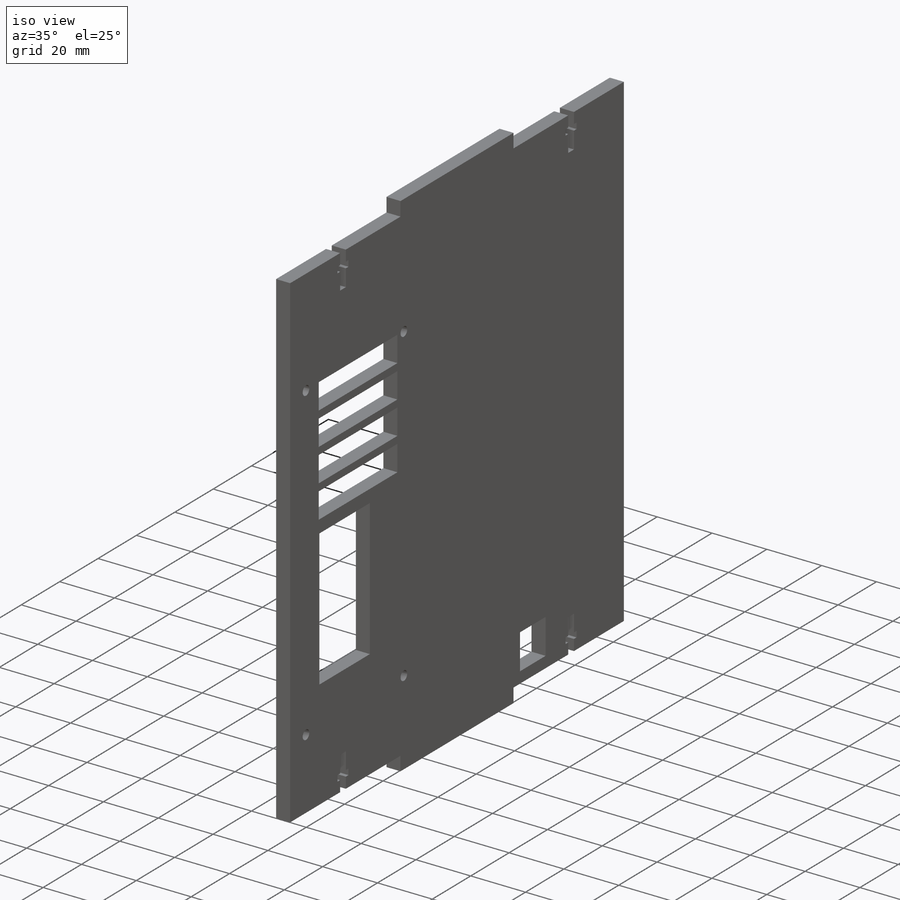
[diagram: iso view]
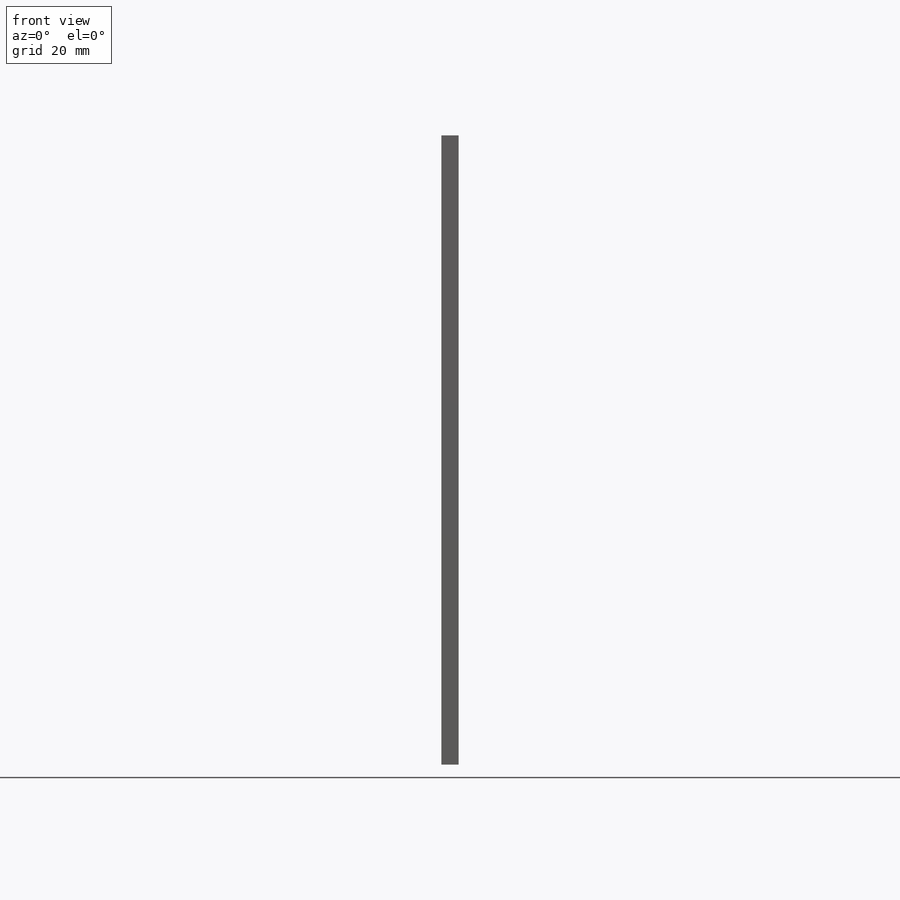
[diagram: front view]
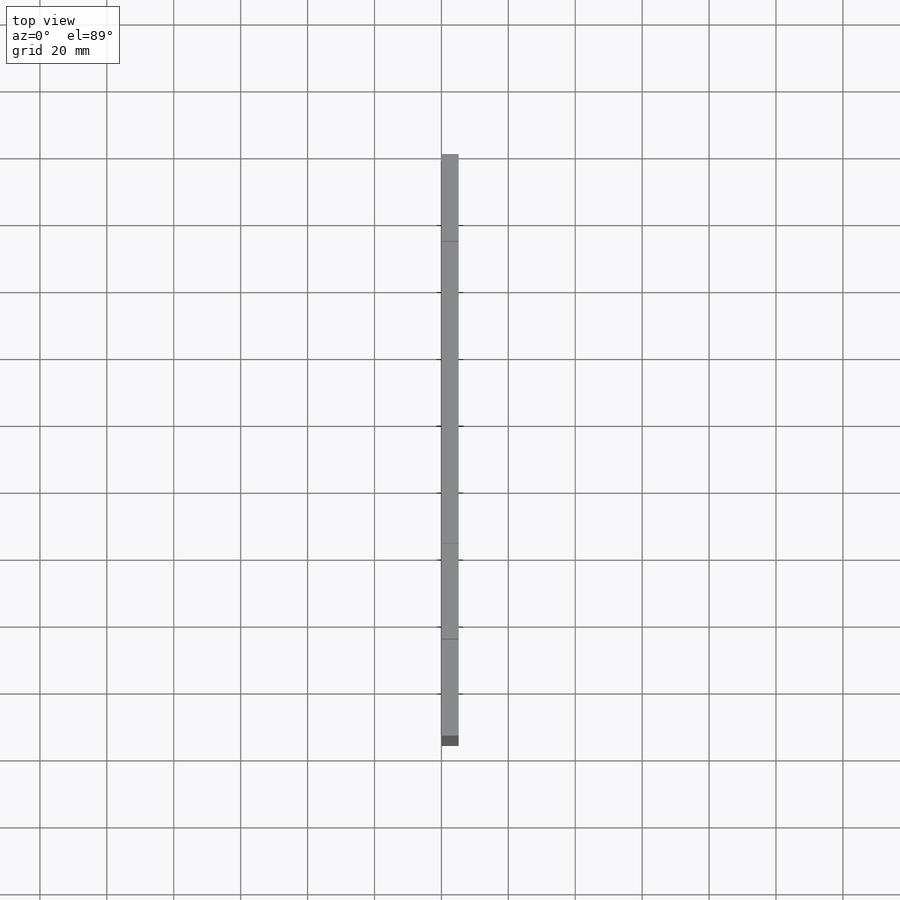
[diagram: top view]
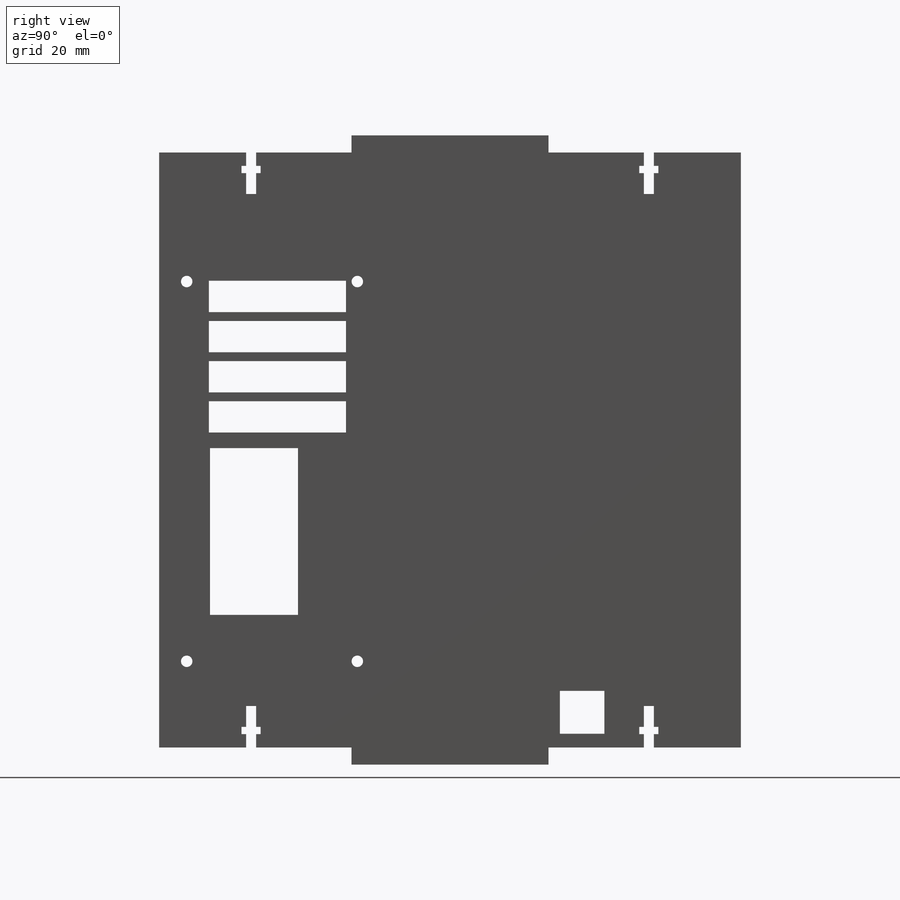
[diagram: right view]
SOLIDWORKS PART (.sldprt)
format: sldprt  version: not decoded by parser v0  size: 338,944 bytes
history: native  units: mm
features: sketch x8, cut_extrude x5, extrude x4, pattern_linear x3, plane x2, material x1, mirror x1 (+11 scaffold rows collapsed)
feature tree (35):
  scaffold x11  (default folders/planes/origin — collapsed)
  material  "Material <not specified>"
  sketch  "Sketch1"  dims[D1=173.89mm D2=177.8mm]
  extrude  "Boss-Extrude1"  Depth=5.13mm
  sketch  "Sketch6"  dims[c1.D1=58.88mm c2.D1=90.0deg c3.D1=86.945mm c3.D2=58.88mm]
  extrude  "teeth"  Depth=5.13mm
  extrude  "Axis2"  [1 undecoded]
  sketch  "Sketch2"  dims[D1=2.167mm D2=2.997mm D3=2.997mm D4=3.995mm D5=3.995mm D6=1.359mm D7=1.359mm D8=6.207mm D9=6.207mm D10=1.359mm D12=26.005mm D11=27.9985mm]
  cut_extrude  "t-slot"  Depth=5.13mm
  pattern_linear  "t-slot pattern"  Count1=2 Count2=1 Spacing1=118.88mm Spacing2=50mm
  plane  "Plane1"
  mirror  "t-slot bottom"
  sketch  "Sketch3"
  cut_extrude  "power port"  Depth=5.13mm
  sketch  "Sketch7"  dims[D1=3.429mm D4=6.25mm D3=2.0]
  cut_extrude  "Power supply screws"  [1 undecoded]
  sketch  "Sketch4"  dims[D1=~9.354563mm D2=41.0mm]
  cut_extrude  "fan vent"  Depth=5.13mm
  pattern_linear  "LPattern3"  Count1=4 Count2=1 Spacing1=12mm Spacing2=10mm
  sketch  "Sketch5"
  cut_extrude  "USB port"  Depth=5.13mm
  plane  "Plane2"
  sketch  "Sketch11"  dims[D1=58.88mm D2=86.945mm]
  extrude  "Boss-Extrude2"  Depth=5.13mm
  pattern_linear  "LPattern4"  Count1=2 Count2=2 Spacing1=51mm Spacing2=113.5mm
decode coverage: 16 of 21 modeling features carry decoded parameters
note: ~ marks probable driven/reference dimensions
note: 2 parameter values undecoded
note: suppression state not decoded; provenance and decode notes live in map.json
